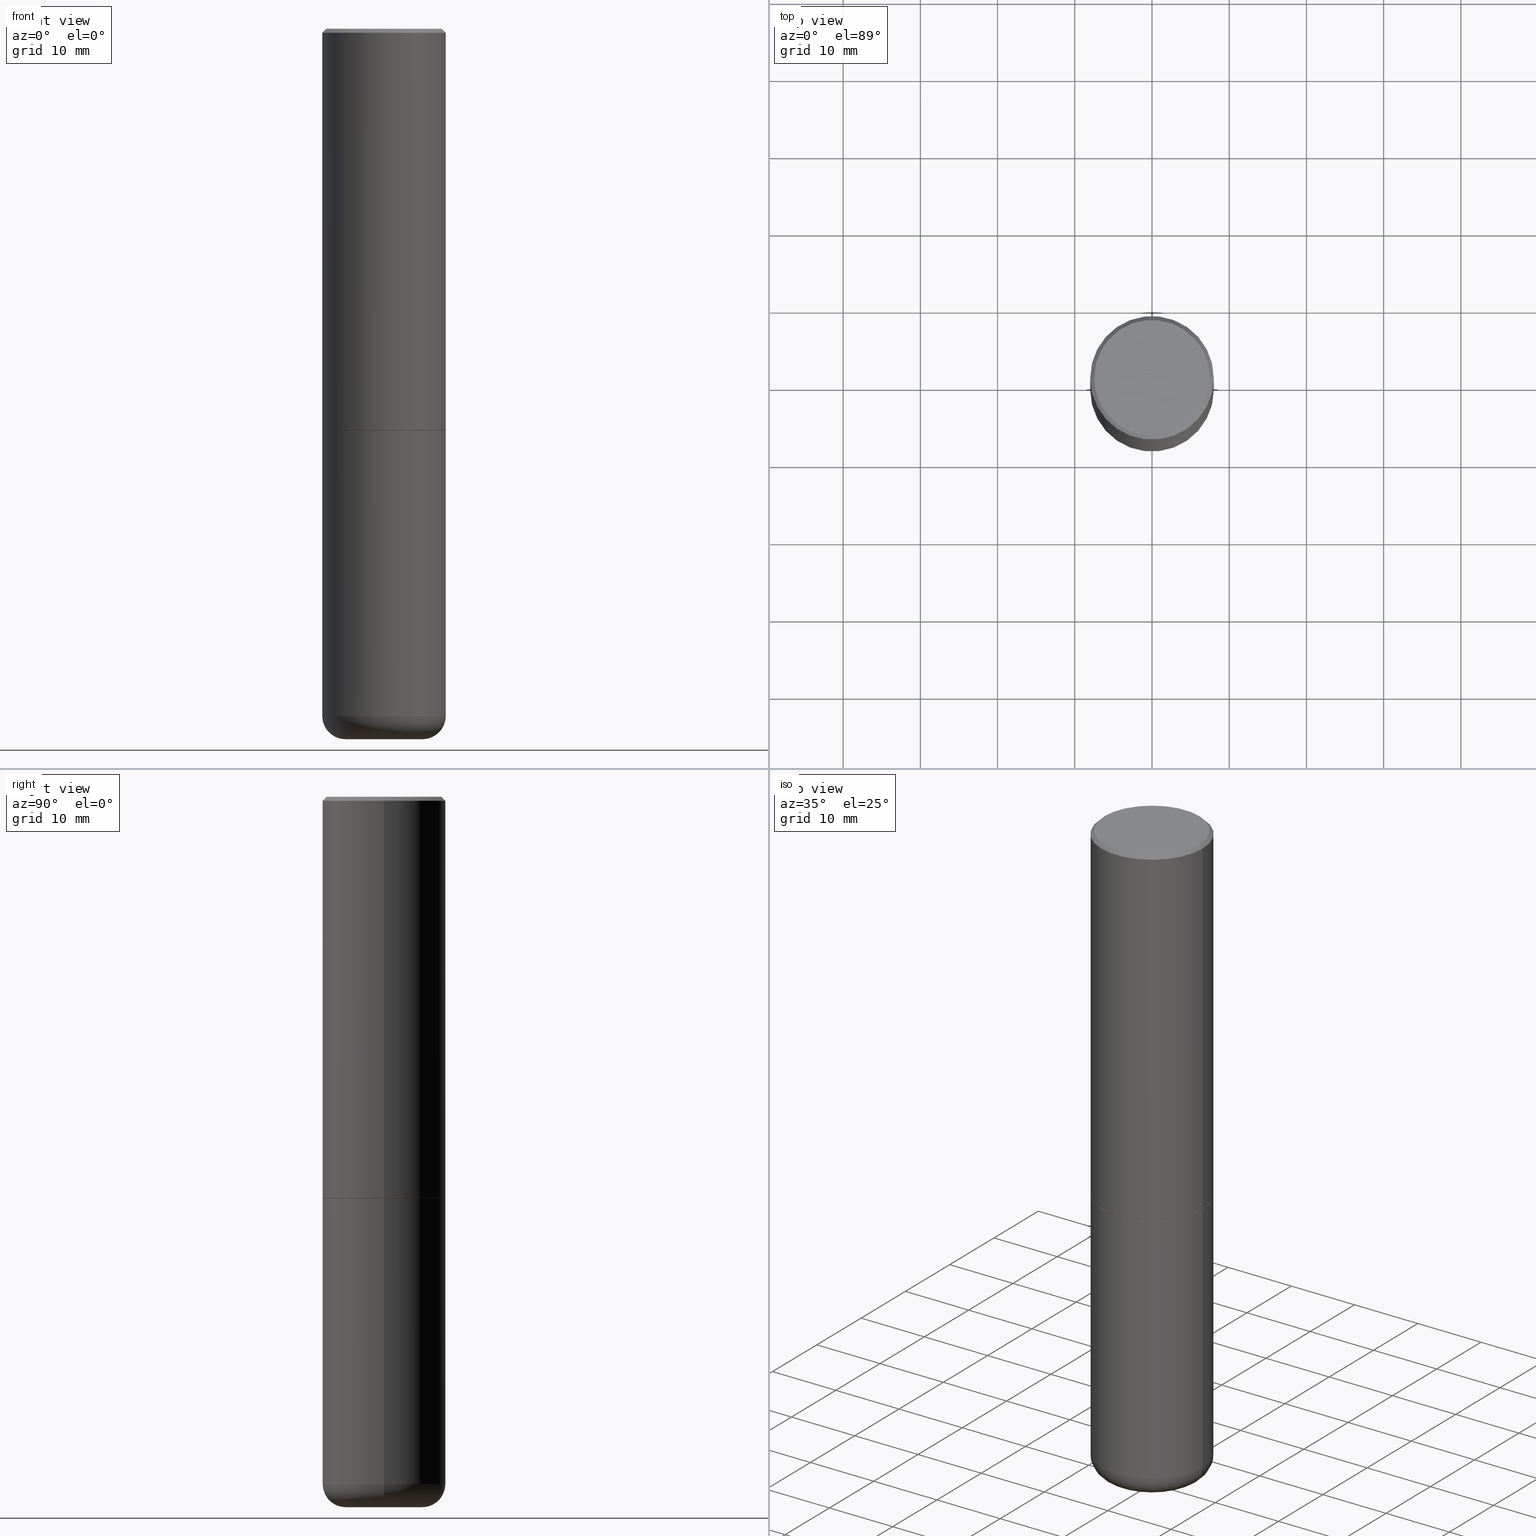
[diagram: canonical four-view strip — front | top / right | iso, engineering-drawing reading convention]
A machine part, canonical four-view strip (front | top / right | iso — engineering-drawing reading convention). The complete STEP part file that produces these views, byte-faithful:
ISO-10303-21;
HEADER;
FILE_DESCRIPTION (( 'STEP AP203' ),
    '1' );
FILE_NAME ('74751.STEP',
    '2024-05-02T19:16:25',
    ( '' ),
    ( '' ),
    'SwSTEP 2.0',
    'SolidWorks 2023',
    '' );
FILE_SCHEMA (( 'CONFIG_CONTROL_DESIGN' ));
ENDSEC;

DATA;
#1 = VERTEX_POINT ( 'NONE', #235 ) ;
#2 =( CONVERSION_BASED_UNIT ( 'INCH', #260 ) LENGTH_UNIT ( ) NAMED_UNIT ( #327 ) );
#3 = AXIS2_PLACEMENT_3D ( 'NONE', #376, #17, #238 ) ;
#4 = CC_DESIGN_APPROVAL ( #113, ( #161 ) ) ;
#5 = ORIENTED_EDGE ( 'NONE', *, *, #233, .T. ) ;
#6 = DATE_AND_TIME ( #155, #417 ) ;
#7 = ORIENTED_EDGE ( 'NONE', *, *, #315, .F. ) ;
#8 = AXIS2_PLACEMENT_3D ( 'NONE', #204, #108, #42 ) ;
#9 = AXIS2_PLACEMENT_3D ( 'NONE', #15, #107, #397 ) ;
#10 = DIRECTION ( 'NONE',  ( -2.438088387897960049E-29, 3.491481338843145188E-15, 1.000000000000000000 ) ) ;
#11 = ORIENTED_EDGE ( 'NONE', *, *, #256, .T. ) ;
#12 = FACE_OUTER_BOUND ( 'NONE', #156, .T. ) ;
#13 = EDGE_CURVE ( 'NONE', #392, #164, #109, .T. ) ;
#14 = VERTEX_POINT ( 'NONE', #285 ) ;
#15 = CARTESIAN_POINT ( 'NONE',  ( 8.568678149992099474E-29, -1.223380146317249786E-14, -3.503899999999999793 ) ) ;
#16 = CONICAL_SURFACE ( 'NONE', #88, 0.3149499999999999522, 0.7853981633974469467 ) ;
#17 = DIRECTION ( 'NONE',  ( -2.445468806185136597E-29, 3.491481338843145583E-15, 1.000000000000000000 ) ) ;
#18 = DIRECTION ( 'NONE',  ( 1.000000000000000000, -6.982962677686265922E-15, 4.876176775795935232E-29 ) ) ;
#19 = DIRECTION ( 'NONE',  ( -1.000000000000000000, 6.982962677686265922E-15, -4.876176775795935793E-29 ) ) ;
#20 = EDGE_CURVE ( 'NONE', #14, #392, #381, .T. ) ;
#21 = AXIS2_PLACEMENT_3D ( 'NONE', #200, #373, #343 ) ;
#22 = CARTESIAN_POINT ( 'NONE',  ( 5.006363740022209999E-29, -7.147760596879685046E-15, -2.047199999999999243 ) ) ;
#23 = LINE ( 'NONE', #142, #205 ) ;
#24 = ADVANCED_FACE ( 'NONE', ( #102 ), #118, .T. ) ;
#25 = LINE ( 'NONE', #27, #52 ) ;
#26 = ORGANIZATION ( 'UNSPECIFIED', 'UNSPECIFIED', '' ) ;
#27 = CARTESIAN_POINT ( 'NONE',  ( 0.3149500000000001743, -2.199284095337290660E-15, 1.535751875536930690E-29 ) ) ;
#28 = ORIENTED_EDGE ( 'NONE', *, *, #72, .T. ) ;
#29 = APPROVAL_STATUS ( 'not_yet_approved' ) ;
#30 = EDGE_CURVE ( 'NONE', #1, #365, #242, .T. ) ;
#31 = COORDINATED_UNIVERSAL_TIME_OFFSET ( 5, 0, .BEHIND. ) ;
#32 = ORIENTED_EDGE ( 'NONE', *, *, #391, .F. ) ;
#33 = EDGE_LOOP ( 'NONE', ( #330, #332, #32, #130 ) ) ;
#34 = CONICAL_SURFACE ( 'NONE', #190, 0.3139500000000000068, 0.7853981633976873100 ) ;
#35 = APPROVAL_DATE_TIME ( #328, #333 ) ;
#36 =( LENGTH_UNIT ( ) NAMED_UNIT ( * ) SI_UNIT ( $, .METRE. ) );
#37 = EDGE_CURVE ( 'NONE', #14, #123, #184, .T. ) ;
#38 = APPROVAL_STATUS ( 'not_yet_approved' ) ;
#39 = ORIENTED_EDGE ( 'NONE', *, *, #13, .T. ) ;
#40 = VECTOR ( 'NONE', #119, 39.37007874015748143 ) ;
#41 = PRODUCT_DEFINITION_FORMATION_WITH_SPECIFIED_SOURCE ( 'ANY', '', #64, .NOT_KNOWN. ) ;
#42 = DIRECTION ( 'NONE',  ( 1.000000000000000000, -6.982962677686263555E-15, 4.883557194083111780E-29 ) ) ;
#43 = DATE_TIME_ROLE ( 'classification_date' ) ;
#44 = ORIENTED_EDGE ( 'NONE', *, *, #391, .T. ) ;
#45 = FACE_OUTER_BOUND ( 'NONE', #300, .T. ) ;
#46 = DIRECTION ( 'NONE',  ( -2.445468806185136597E-29, 3.491481338843145583E-15, 1.000000000000000000 ) ) ;
#47 = AXIS2_PLACEMENT_3D ( 'NONE', #339, #337, #230 ) ;
#48 = AXIS2_PLACEMENT_3D ( 'NONE', #270, #407, #349 ) ;
#49 = CARTESIAN_POINT ( 'NONE',  ( 4.890937612370289799E-31, -6.982962677686315028E-17, -0.02000000000000006981 ) ) ;
#50 = CARTESIAN_POINT ( 'NONE',  ( -4.488561081641444621E-45, 6.408475632635922878E-31, 1.835460370743176819E-16 ) ) ;
#51 = DIRECTION ( 'NONE',  ( 1.000000000000000000, -6.982962677686265922E-15, 4.876176775795935232E-29 ) ) ;
#52 = VECTOR ( 'NONE', #146, 39.37007874015748143 ) ;
#53 = FACE_OUTER_BOUND ( 'NONE', #69, .T. ) ;
#54 = CARTESIAN_POINT ( 'NONE',  ( 0.3149499999999999522, -2.230543471175006661E-15, -0.02000000000000006981 ) ) ;
#55 = CARTESIAN_POINT ( 'NONE',  ( 5.006363740022209999E-29, -7.147760596879685046E-15, -2.047199999999999243 ) ) ;
#56 = EDGE_LOOP ( 'NONE', ( #360, #197, #44, #125 ) ) ;
#57 = AXIS2_PLACEMENT_3D ( 'NONE', #404, #264, #73 ) ;
#58 = CIRCLE ( 'NONE', #313, 0.1968500000000000250 ) ;
#59 = AXIS2_PLACEMENT_3D ( 'NONE', #165, #370, #111 ) ;
#60 = VERTEX_POINT ( 'NONE', #283 ) ;
#61 = PERSON_AND_ORGANIZATION ( #136, #26 ) ;
#62 = ORIENTED_EDGE ( 'NONE', *, *, #121, .T. ) ;
#63 = APPLICATION_PROTOCOL_DEFINITION ( 'international standard', 'config_control_design', 1994, #399 ) ;
#64 = PRODUCT ( '74751', '74751', '', ( #286 ) ) ;
#65 = DIRECTION ( 'NONE',  ( 1.000000000000000000, -6.982962677686263555E-15, 0.000000000000000000 ) ) ;
#66 = AXIS2_PLACEMENT_3D ( 'NONE', #55, #181, #323 ) ;
#67 = ADVANCED_FACE ( 'NONE', ( #143 ), #406, .T. ) ;
#68 = PERSON_AND_ORGANIZATION ( #136, #26 ) ;
#69 = EDGE_LOOP ( 'NONE', ( #28, #91, #402, #166 ) ) ;
#70 = ORIENTED_EDGE ( 'NONE', *, *, #272, .F. ) ;
#71 = ORIENTED_EDGE ( 'NONE', *, *, #20, .F. ) ;
#72 = EDGE_CURVE ( 'NONE', #1, #263, #362, .T. ) ;
#73 = DIRECTION ( 'NONE',  ( -1.000000000000000000, 6.982962677686265922E-15, -4.876176775795935793E-29 ) ) ;
#74 = TOROIDAL_SURFACE ( 'NONE', #9, 0.1968500000000000250, 0.1181000000000000105 ) ;
#75 = ORIENTED_EDGE ( 'NONE', *, *, #37, .T. ) ;
#76 = ORIENTED_EDGE ( 'NONE', *, *, #396, .T. ) ;
#77 = LINE ( 'NONE', #234, #298 ) ;
#78 = DIRECTION ( 'NONE',  ( 1.000000000000000000, -6.982962677686265922E-15, 4.876176775795935793E-29 ) ) ;
#79 = DIRECTION ( 'NONE',  ( 1.000000000000000000, -6.982962677686266711E-15, 0.000000000000000000 ) ) ;
#80 = VECTOR ( 'NONE', #231, 39.37007874015748143 ) ;
#81 = CIRCLE ( 'NONE', #336, 0.3149499999999999522 ) ;
#82 = ADVANCED_FACE ( 'NONE', ( #12 ), #281, .T. ) ;
#83 = CARTESIAN_POINT ( 'NONE',  ( -0.3149500000000000077, -7.452926683749657046E-15, -2.047199999999999687 ) ) ;
#84 = DIRECTION ( 'NONE',  ( -2.445468806185136597E-29, 3.491481338843145583E-15, 1.000000000000000000 ) ) ;
#85 = DIRECTION ( 'NONE',  ( -2.445468806185136597E-29, 3.491481338843145583E-15, 1.000000000000000000 ) ) ;
#86 = DIRECTION ( 'NONE',  ( -2.445468806185136597E-29, 3.491481338843145583E-15, 1.000000000000000000 ) ) ;
#87 = ADVANCED_FACE ( 'NONE', ( #169 ), #301, .F. ) ;
#88 = AXIS2_PLACEMENT_3D ( 'NONE', #244, #276, #208 ) ;
#89 = FACE_OUTER_BOUND ( 'NONE', #229, .T. ) ;
#90 = DIRECTION ( 'NONE',  ( -2.445468806185136597E-29, 3.491481338843145583E-15, 1.000000000000000000 ) ) ;
#91 = ORIENTED_EDGE ( 'NONE', *, *, #377, .T. ) ;
#92 = ORIENTED_EDGE ( 'NONE', *, *, #358, .T. ) ;
#93 = VECTOR ( 'NONE', #247, 39.37007874015748143 ) ;
#94 = CC_DESIGN_PERSON_AND_ORGANIZATION_ASSIGNMENT ( #61, #187, ( #64 ) ) ;
#95 = DATE_AND_TIME ( #356, #375 ) ;
#96 = PERSON_AND_ORGANIZATION ( #136, #26 ) ;
#97 = APPROVAL_STATUS ( 'not_yet_approved' ) ;
#98 = VERTEX_POINT ( 'NONE', #110 ) ;
#99 = AXIS2_PLACEMENT_3D ( 'NONE', #292, #387, #149 ) ;
#100 = LOCAL_TIME ( 15, 16, 25.00000000000000000, #366 ) ;
#101 = ORIENTED_EDGE ( 'NONE', *, *, #30, .T. ) ;
#102 = FACE_OUTER_BOUND ( 'NONE', #56, .T. ) ;
#103 = VERTEX_POINT ( 'NONE', #134 ) ;
#104 = CC_DESIGN_DATE_AND_TIME_ASSIGNMENT ( #95, #288, ( #367 ) ) ;
#105 = DIRECTION ( 'NONE',  ( 1.000000000000000000, -6.982962677686267499E-15, 0.000000000000000000 ) ) ;
#106 = ORIENTED_EDGE ( 'NONE', *, *, #170, .F. ) ;
#107 = DIRECTION ( 'NONE',  ( -2.445468806185136597E-29, 3.491481338843145583E-15, 1.000000000000000000 ) ) ;
#108 = DIRECTION ( 'NONE',  ( -2.445468806185136597E-29, 3.491481338843145583E-15, 1.000000000000000000 ) ) ;
#109 = LINE ( 'NONE', #116, #80 ) ;
#110 = CARTESIAN_POINT ( 'NONE',  ( -0.3149500000000002853, -1.369195024882414317E-15, -2.046199999999999797 ) ) ;
#111 = DIRECTION ( 'NONE',  ( 1.000000000000000000, -6.982962677686269866E-15, 0.000000000000000000 ) ) ;
#112 = AXIS2_PLACEMENT_3D ( 'NONE', #115, #383, #409 ) ;
#113 = APPROVAL ( #38, 'UNSPECIFIED' ) ;
#114 = DIRECTION ( 'NONE',  ( 2.438088387897960049E-29, -3.491481338843145188E-15, -1.000000000000000000 ) ) ;
#115 = CARTESIAN_POINT ( 'NONE',  ( 8.726305720484796028E-29, -1.820591954908441559E-15, -2.047200000000000131 ) ) ;
#116 = CARTESIAN_POINT ( 'NONE',  ( -0.3149500000000000077, 2.237854346276435590E-15, -1.549218606675782676E-29 ) ) ;
#117 = CYLINDRICAL_SURFACE ( 'NONE', #282, 0.3149500000000001743 ) ;
#118 = CONICAL_SURFACE ( 'NONE', #341, 0.3149499999999999522, 0.7853981633974469467 ) ;
#119 = DIRECTION ( 'NONE',  ( -0.7071067811865465735, 2.468850131082246805E-15, -0.7071067811865484609 ) ) ;
#120 = CARTESIAN_POINT ( 'NONE',  ( 0.3149500000000002853, -9.343553210878135066E-15, -2.046199999999999797 ) ) ;
#121 = EDGE_CURVE ( 'NONE', #137, #355, #77, .T. ) ;
#122 = CALENDAR_DATE ( 2024, 2, 5 ) ;
#123 = VERTEX_POINT ( 'NONE', #236 ) ;
#124 = COORDINATED_UNIVERSAL_TIME_OFFSET ( 5, 0, .BEHIND. ) ;
#125 = ORIENTED_EDGE ( 'NONE', *, *, #372, .F. ) ;
#126 = APPROVAL_DATE_TIME ( #6, #141 ) ;
#127 = ORIENTED_EDGE ( 'NONE', *, *, #13, .F. ) ;
#128 = DIRECTION ( 'NONE',  ( 7.105427357601001859E-15, 1.000000000000000000, -3.491481338843145583E-15 ) ) ;
#129 = CC_DESIGN_APPROVAL ( #333, ( #367 ) ) ;
#130 = ORIENTED_EDGE ( 'NONE', *, *, #256, .F. ) ;
#131 = DIRECTION ( 'NONE',  ( -2.445468806185136597E-29, 3.491481338843145583E-15, 1.000000000000000000 ) ) ;
#132 = ORIENTED_EDGE ( 'NONE', *, *, #219, .F. ) ;
#133 = FACE_OUTER_BOUND ( 'NONE', #201, .T. ) ;
#134 = CARTESIAN_POINT ( 'NONE',  ( 0.2949499999999997679, -2.127023677808858891E-15, 1.835460370743323251E-16 ) ) ;
#135 = CIRCLE ( 'NONE', #176, 0.3149500000000002853 ) ;
#136 = PERSON ( 'UNSPECIFIED', 'UNSPECIFIED', 'UNSPECIFIED', ('UNSPECIFIED'), ('UNSPECIFIED'), ('UNSPECIFIED') ) ;
#137 = VERTEX_POINT ( 'NONE', #334 ) ;
#138 = DIRECTION ( 'NONE',  ( -2.445468806185136597E-29, 3.491481338843145583E-15, 1.000000000000000000 ) ) ;
#139 = CYLINDRICAL_SURFACE ( 'NONE', #48, 0.3149500000000000077 ) ;
#140 = FACE_OUTER_BOUND ( 'NONE', #220, .T. ) ;
#141 = APPROVAL ( #97, 'UNSPECIFIED' ) ;
#142 = CARTESIAN_POINT ( 'NONE',  ( 0.3149499999999999522, -2.230543471175006661E-15, -0.02000000000000006981 ) ) ;
#143 = FACE_OUTER_BOUND ( 'NONE', #182, .T. ) ;
#144 = FACE_OUTER_BOUND ( 'NONE', #150, .T. ) ;
#145 = DIRECTION ( 'NONE',  ( 1.000000000000000000, -6.982962677686273021E-15, 0.000000000000000000 ) ) ;
#146 = DIRECTION ( 'NONE',  ( -2.445468806185136877E-29, 3.491481338843145188E-15, 1.000000000000000000 ) ) ;
#147 = PERSON_AND_ORGANIZATION_ROLE ( 'creator' ) ;
#148 = ORIENTED_EDGE ( 'NONE', *, *, #151, .T. ) ;
#149 = DIRECTION ( 'NONE',  ( 1.000000000000000000, 0.000000000000000000, 0.000000000000000000 ) ) ;
#150 = EDGE_LOOP ( 'NONE', ( #92, #148 ) ) ;
#151 = EDGE_CURVE ( 'NONE', #164, #355, #369, .T. ) ;
#152 = CIRCLE ( 'NONE', #196, 0.3149500000000002853 ) ;
#153 = CC_DESIGN_APPROVAL ( #141, ( #41 ) ) ;
#154 =( NAMED_UNIT ( * ) SI_UNIT ( $, .STERADIAN. ) SOLID_ANGLE_UNIT ( ) );
#155 = CALENDAR_DATE ( 2024, 2, 5 ) ;
#156 = EDGE_LOOP ( 'NONE', ( #266, #192, #215, #7 ) ) ;
#157 = EDGE_LOOP ( 'NONE', ( #127, #189, #62, #405 ) ) ;
#158 = CARTESIAN_POINT ( 'NONE',  ( -0.1968500000000000250, -1.083509808782873928E-14, -3.503899999999999793 ) ) ;
#159 = PERSON_AND_ORGANIZATION ( #136, #26 ) ;
#160 = AXIS2_PLACEMENT_3D ( 'NONE', #175, #114, #19 ) ;
#161 = SECURITY_CLASSIFICATION ( '', '', #352 ) ;
#162 = CARTESIAN_POINT ( 'NONE',  ( 5.003918271216025517E-29, -7.144269115540843617E-15, -2.046199999999999797 ) ) ;
#163 = ADVANCED_FACE ( 'NONE', ( #133 ), #311, .T. ) ;
#164 = VERTEX_POINT ( 'NONE', #83 ) ;
#165 = CARTESIAN_POINT ( 'NONE',  ( 5.006363740022211120E-29, -7.147760596879686624E-15, -2.047199999999999687 ) ) ;
#166 = ORIENTED_EDGE ( 'NONE', *, *, #30, .F. ) ;
#167 = APPROVAL_ROLE ( '' ) ;
#168 = ORIENTED_EDGE ( 'NONE', *, *, #377, .F. ) ;
#169 = FACE_OUTER_BOUND ( 'NONE', #257, .T. ) ;
#170 = EDGE_CURVE ( 'NONE', #98, #228, #198, .T. ) ;
#171 = CARTESIAN_POINT ( 'NONE',  ( 0.000000000000000000, 0.000000000000000000, 0.000000000000000000 ) ) ;
#172 = APPROVAL_PERSON_ORGANIZATION ( #96, #141, #222 ) ;
#173 = FACE_OUTER_BOUND ( 'NONE', #157, .T. ) ;
#174 = DIRECTION ( 'NONE',  ( 1.000000000000000000, -6.982962677686264344E-15, 0.000000000000000000 ) ) ;
#175 = CARTESIAN_POINT ( 'NONE',  ( 8.857488016002564476E-29, -1.264614540928987199E-14, -3.621999999999999886 ) ) ;
#176 = AXIS2_PLACEMENT_3D ( 'NONE', #162, #131, #105 ) ;
#177 = CARTESIAN_POINT ( 'NONE',  ( 8.568678149992099474E-29, -1.223380146317249786E-14, -3.503899999999999793 ) ) ;
#178 = DIRECTION ( 'NONE',  ( -6.982962677686266711E-15, -1.000000000000000000, 3.491481338843145583E-15 ) ) ;
#179 = ORIENTED_EDGE ( 'NONE', *, *, #372, .T. ) ;
#180 = ADVANCED_FACE ( 'NONE', ( #45 ), #265, .F. ) ;
#181 = DIRECTION ( 'NONE',  ( -2.445468806185136597E-29, 3.491481338843145583E-15, 1.000000000000000000 ) ) ;
#182 = EDGE_LOOP ( 'NONE', ( #106, #329, #11, #295 ) ) ;
#183 = AXIS2_PLACEMENT_3D ( 'NONE', #158, #128, #338 ) ;
#184 = CIRCLE ( 'NONE', #374, 0.1968500000000000250 ) ;
#185 = AXIS2_PLACEMENT_3D ( 'NONE', #312, #416, #411 ) ;
#186 = PERSON_AND_ORGANIZATION ( #136, #26 ) ;
#187 = PERSON_AND_ORGANIZATION_ROLE ( 'design_owner' ) ;
#188 = ORIENTED_EDGE ( 'NONE', *, *, #72, .F. ) ;
#189 = ORIENTED_EDGE ( 'NONE', *, *, #272, .T. ) ;
#190 = AXIS2_PLACEMENT_3D ( 'NONE', #22, #85, #174 ) ;
#191 = APPLICATION_PROTOCOL_DEFINITION ( 'international standard', 'config_control_design', 1994, #380 ) ;
#192 = ORIENTED_EDGE ( 'NONE', *, *, #20, .T. ) ;
#193 = PERSON_AND_ORGANIZATION_ROLE ( 'design_supplier' ) ;
#194 = ORIENTED_EDGE ( 'NONE', *, *, #37, .F. ) ;
#195 = APPROVAL_DATE_TIME ( #262, #113 ) ;
#196 = AXIS2_PLACEMENT_3D ( 'NONE', #243, #314, #318 ) ;
#197 = ORIENTED_EDGE ( 'NONE', *, *, #342, .T. ) ;
#198 = LINE ( 'NONE', #303, #325 ) ;
#199 = ORIENTED_EDGE ( 'NONE', *, *, #212, .F. ) ;
#200 = CARTESIAN_POINT ( 'NONE',  ( -4.488561081641444621E-45, 6.408475632635922878E-31, 1.835460370743176819E-16 ) ) ;
#201 = EDGE_LOOP ( 'NONE', ( #324, #39, #393, #248 ) ) ;
#202 = ADVANCED_FACE ( 'NONE', ( #368 ), #74, .T. ) ;
#203 = CARTESIAN_POINT ( 'NONE',  ( 5.006363740022209999E-29, -7.147760596879685046E-15, -2.047199999999999243 ) ) ;
#204 = CARTESIAN_POINT ( 'NONE',  ( 8.568678149992099474E-29, -1.223380146317249786E-14, -3.503899999999999793 ) ) ;
#205 = VECTOR ( 'NONE', #413, 39.37007874015748143 ) ;
#206 = DIRECTION ( 'NONE',  ( 1.000000000000000000, -6.982962677686267499E-15, 0.000000000000000000 ) ) ;
#207 = CARTESIAN_POINT ( 'NONE',  ( -0.3139500000000000068, -4.911713223612628457E-15, -2.047199999999999243 ) ) ;
#208 = DIRECTION ( 'NONE',  ( -1.000000000000000000, 6.982962677686266711E-15, 0.000000000000000000 ) ) ;
#209 = CARTESIAN_POINT ( 'NONE',  ( -0.3149499999999999522, 2.129454468560426178E-15, -0.02000000000000006981 ) ) ;
#210 = CLOSED_SHELL ( 'NONE', ( #163, #82, #245, #240, #202, #293 ) ) ;
#211 = CARTESIAN_POINT ( 'NONE',  ( 0.3149500000000000077, -9.347044692216978073E-15, -2.047199999999999687 ) ) ;
#212 = EDGE_CURVE ( 'NONE', #60, #103, #216, .T. ) ;
#213 = DIRECTION ( 'NONE',  ( 1.000000000000000000, -6.982962677686266711E-15, 0.000000000000000000 ) ) ;
#214 = APPROVAL_ROLE ( '' ) ;
#215 = ORIENTED_EDGE ( 'NONE', *, *, #403, .F. ) ;
#216 = CIRCLE ( 'NONE', #21, 0.2949499999999997679 ) ;
#217 = APPROVAL_PERSON_ORGANIZATION ( #395, #113, #167 ) ;
#218 = CARTESIAN_POINT ( 'NONE',  ( 8.568678149992099474E-29, -1.223380146317249786E-14, -3.503899999999999793 ) ) ;
#219 = EDGE_CURVE ( 'NONE', #98, #365, #135, .T. ) ;
#220 = EDGE_LOOP ( 'NONE', ( #335, #194 ) ) ;
#221 = CARTESIAN_POINT ( 'NONE',  ( 0.3139500000000000068, -9.340061729539288903E-15, -2.047199999999999243 ) ) ;
#222 = APPROVAL_ROLE ( '' ) ;
#223 = CC_DESIGN_PERSON_AND_ORGANIZATION_ASSIGNMENT ( #68, #193, ( #41 ) ) ;
#224 = PERSON_AND_ORGANIZATION ( #136, #26 ) ;
#225 = AXIS2_PLACEMENT_3D ( 'NONE', #171, #309, #18 ) ;
#226 = COORDINATED_UNIVERSAL_TIME_OFFSET ( 5, 0, .BEHIND. ) ;
#227 = ADVANCED_FACE ( 'NONE', ( #268 ), #353, .T. ) ;
#228 = VERTEX_POINT ( 'NONE', #269 ) ;
#229 = EDGE_LOOP ( 'NONE', ( #252, #199, #179, #5 ) ) ;
#230 = DIRECTION ( 'NONE',  ( 1.000000000000000000, -6.982962677686264344E-15, 0.000000000000000000 ) ) ;
#231 = DIRECTION ( 'NONE',  ( -2.445468806185136877E-29, 3.491481338843145188E-15, 1.000000000000000000 ) ) ;
#232 = AXIS2_PLACEMENT_3D ( 'NONE', #398, #10, #78 ) ;
#233 = EDGE_CURVE ( 'NONE', #228, #294, #389, .T. ) ;
#234 = CARTESIAN_POINT ( 'NONE',  ( 0.3149500000000000077, -2.199284095337289871E-15, 1.535751875536930130E-29 ) ) ;
#235 = CARTESIAN_POINT ( 'NONE',  ( 0.3139500000000000068, -9.340061729539288903E-15, -2.047199999999999243 ) ) ;
#236 = CARTESIAN_POINT ( 'NONE',  ( 0.1968500000000000250, -1.402074161239241360E-14, -3.621999999999999886 ) ) ;
#237 = AXIS2_PLACEMENT_3D ( 'NONE', #177, #86, #346 ) ;
#238 = DIRECTION ( 'NONE',  ( 1.000000000000000000, -6.982962677686266711E-15, 4.876176775795936353E-29 ) ) ;
#239 = CIRCLE ( 'NONE', #66, 0.3139500000000000068 ) ;
#240 = ADVANCED_FACE ( 'NONE', ( #173 ), #139, .T. ) ;
#241 = CARTESIAN_POINT ( 'NONE',  ( 8.857488016002564476E-29, -1.264614540928987199E-14, -3.621999999999999886 ) ) ;
#242 = LINE ( 'NONE', #221, #414 ) ;
#243 = CARTESIAN_POINT ( 'NONE',  ( 5.003918271216025517E-29, -7.144269115540843617E-15, -2.046199999999999797 ) ) ;
#244 = CARTESIAN_POINT ( 'NONE',  ( 4.890937612370289799E-31, -6.982962677686315028E-17, -0.02000000000000006981 ) ) ;
#245 = ADVANCED_FACE ( 'NONE', ( #144 ), #319, .F. ) ;
#246 = CIRCLE ( 'NONE', #185, 0.3149500000000000077 ) ;
#247 = DIRECTION ( 'NONE',  ( -0.7071067811867165487, 7.493145998870964739E-15, 0.7071067811863784858 ) ) ;
#248 = ORIENTED_EDGE ( 'NONE', *, *, #121, .F. ) ;
#249 = DIRECTION ( 'NONE',  ( -2.445468806185136597E-29, 3.491481338843145583E-15, 1.000000000000000000 ) ) ;
#250 = ADVANCED_FACE ( 'NONE', ( #386 ), #117, .T. ) ;
#251 = DATE_AND_TIME ( #122, #259 ) ;
#252 = ORIENTED_EDGE ( 'NONE', *, *, #342, .F. ) ;
#253 = CIRCLE ( 'NONE', #289, 0.2949499999999997679 ) ;
#254 = CALENDAR_DATE ( 2024, 2, 5 ) ;
#255 = EDGE_LOOP ( 'NONE', ( #168, #76, #101, #132 ) ) ;
#256 = EDGE_CURVE ( 'NONE', #365, #294, #25, .T. ) ;
#257 = EDGE_LOOP ( 'NONE', ( #385, #287 ) ) ;
#258 = APPROVAL_PERSON_ORGANIZATION ( #224, #333, #214 ) ;
#259 = LOCAL_TIME ( 15, 16, 25.00000000000000000, #321 ) ;
#260 = LENGTH_MEASURE_WITH_UNIT ( LENGTH_MEASURE( 0.02539999999999999897 ), #36 );
#261 = EDGE_LOOP ( 'NONE', ( #71, #75, #308, #70 ) ) ;
#262 = DATE_AND_TIME ( #299, #100 ) ;
#263 = VERTEX_POINT ( 'NONE', #207 ) ;
#264 = DIRECTION ( 'NONE',  ( 2.438088387897960049E-29, -3.491481338843145188E-15, -1.000000000000000000 ) ) ;
#265 = PLANE ( 'NONE',  #232 ) ;
#266 = ORIENTED_EDGE ( 'NONE', *, *, #322, .T. ) ;
#267 = CLOSED_SHELL ( 'NONE', ( #326, #250, #24, #351, #67, #227, #180, #87 ) ) ;
#268 = FACE_OUTER_BOUND ( 'NONE', #255, .T. ) ;
#269 = CARTESIAN_POINT ( 'NONE',  ( -0.3149499999999999522, 2.129454468560426178E-15, -0.02000000000000006981 ) ) ;
#270 = CARTESIAN_POINT ( 'NONE',  ( 0.000000000000000000, 0.000000000000000000, 0.000000000000000000 ) ) ;
#271 = DIRECTION ( 'NONE',  ( 2.445468806185136597E-29, -3.491481338843145583E-15, -1.000000000000000000 ) ) ;
#272 = EDGE_CURVE ( 'NONE', #392, #137, #363, .T. ) ;
#273 = CARTESIAN_POINT ( 'NONE',  ( 8.857488016002564476E-29, -1.264614540928987199E-14, -3.621999999999999886 ) ) ;
#274 = AXIS2_PLACEMENT_3D ( 'NONE', #49, #46, #79 ) ;
#275 = DIRECTION ( 'NONE',  ( -2.445468806185136597E-29, 3.491481338843145583E-15, 1.000000000000000000 ) ) ;
#276 = DIRECTION ( 'NONE',  ( 2.445468806185136597E-29, -3.491481338843145583E-15, -1.000000000000000000 ) ) ;
#277 = EDGE_CURVE ( 'NONE', #103, #60, #253, .T. ) ;
#278 = CARTESIAN_POINT ( 'NONE',  ( 4.890937612370289799E-31, -6.982962677686315028E-17, -0.02000000000000006981 ) ) ;
#279 = PLANE ( 'NONE',  #160 ) ;
#280 = CARTESIAN_POINT ( 'NONE',  ( 0.1968500000000000250, -1.360839766627503947E-14, -3.503899999999999793 ) ) ;
#281 = TOROIDAL_SURFACE ( 'NONE', #8, 0.1968500000000000250, 0.1181000000000000105 ) ;
#282 = AXIS2_PLACEMENT_3D ( 'NONE', #347, #275, #51 ) ;
#283 = CARTESIAN_POINT ( 'NONE',  ( -0.2949499999999997679, 2.094539655171994924E-15, 1.835460370743031619E-16 ) ) ;
#284 = CARTESIAN_POINT ( 'NONE',  ( -0.3139500000000000068, -4.917011677960851648E-15, -2.047199999999999243 ) ) ;
#285 = CARTESIAN_POINT ( 'NONE',  ( -0.1968500000000000250, -1.062169457542108922E-14, -3.621999999999999886 ) ) ;
#286 = MECHANICAL_CONTEXT ( 'NONE', #380, 'mechanical' ) ;
#287 = ORIENTED_EDGE ( 'NONE', *, *, #277, .T. ) ;
#288 = DATE_TIME_ROLE ( 'creation_date' ) ;
#289 = AXIS2_PLACEMENT_3D ( 'NONE', #50, #249, #316 ) ;
#290 = DESIGN_CONTEXT ( 'detailed design', #399, 'design' ) ;
#291 = MANIFOLD_SOLID_BREP ( 'Body-Move/Copy2[1]', #210 ) ;
#292 = CARTESIAN_POINT ( 'NONE',  ( 0.000000000000000000, 0.000000000000000000, 0.000000000000000000 ) ) ;
#293 = ADVANCED_FACE ( 'NONE', ( #140 ), #279, .T. ) ;
#294 = VERTEX_POINT ( 'NONE', #54 ) ;
#295 = ORIENTED_EDGE ( 'NONE', *, *, #233, .F. ) ;
#296 = MANIFOLD_SOLID_BREP ( 'Body-Move/Copy2[2]', #267 ) ;
#297 = CC_DESIGN_PERSON_AND_ORGANIZATION_ASSIGNMENT ( #186, #331, ( #161 ) ) ;
#298 = VECTOR ( 'NONE', #371, 39.37007874015748143 ) ;
#299 = CALENDAR_DATE ( 2024, 2, 5 ) ;
#300 = EDGE_LOOP ( 'NONE', ( #188, #388 ) ) ;
#301 = PLANE ( 'NONE',  #57 ) ;
#302 = CC_DESIGN_PERSON_AND_ORGANIZATION_ASSIGNMENT ( #159, #390, ( #367 ) ) ;
#303 = CARTESIAN_POINT ( 'NONE',  ( -0.3149500000000001743, 2.237854346276436774E-15, -1.549218606675783237E-29 ) ) ;
#304 = CC_DESIGN_PERSON_AND_ORGANIZATION_ASSIGNMENT ( #364, #147, ( #41 ) ) ;
#305 = SHAPE_DEFINITION_REPRESENTATION ( #361, #317 ) ;
#306 = DIRECTION ( 'NONE',  ( -2.445468806185136877E-29, 3.491481338843145188E-15, 1.000000000000000000 ) ) ;
#307 = CIRCLE ( 'NONE', #394, 0.3149500000000000077 ) ;
#308 = ORIENTED_EDGE ( 'NONE', *, *, #315, .T. ) ;
#309 = DIRECTION ( 'NONE',  ( -2.445468806185136597E-29, 3.491481338843145583E-15, 1.000000000000000000 ) ) ;
#310 = EDGE_CURVE ( 'NONE', #365, #98, #152, .T. ) ;
#311 = CYLINDRICAL_SURFACE ( 'NONE', #3, 0.3149500000000000077 ) ;
#312 = CARTESIAN_POINT ( 'NONE',  ( 5.006363740022211120E-29, -7.147760596879686624E-15, -2.047199999999999687 ) ) ;
#313 = AXIS2_PLACEMENT_3D ( 'NONE', #241, #418, #378 ) ;
#314 = DIRECTION ( 'NONE',  ( -2.445468806185136597E-29, 3.491481338843145583E-15, 1.000000000000000000 ) ) ;
#315 = EDGE_CURVE ( 'NONE', #123, #137, #408, .T. ) ;
#316 = DIRECTION ( 'NONE',  ( 1.000000000000000000, -6.982962677686265922E-15, 4.874125435057325556E-29 ) ) ;
#317 = ADVANCED_BREP_SHAPE_REPRESENTATION ( '74751', ( #291, #296, #99 ), #415 ) ;
#318 = DIRECTION ( 'NONE',  ( 1.000000000000000000, -6.982962677686267499E-15, 0.000000000000000000 ) ) ;
#319 = PLANE ( 'NONE',  #112 ) ;
#320 = LOCAL_TIME ( 15, 16, 25.00000000000000000, #31 ) ;
#321 = COORDINATED_UNIVERSAL_TIME_OFFSET ( 5, 0, .BEHIND. ) ;
#322 = EDGE_CURVE ( 'NONE', #123, #14, #58, .T. ) ;
#323 = DIRECTION ( 'NONE',  ( 1.000000000000000000, -6.982962677686264344E-15, 0.000000000000000000 ) ) ;
#324 = ORIENTED_EDGE ( 'NONE', *, *, #403, .T. ) ;
#325 = VECTOR ( 'NONE', #306, 39.37007874015748143 ) ;
#326 = ADVANCED_FACE ( 'NONE', ( #53 ), #34, .T. ) ;
#327 = DIMENSIONAL_EXPONENTS ( 1.000000000000000000, 0.000000000000000000, 0.000000000000000000, 0.000000000000000000, 0.000000000000000000, 0.000000000000000000, 0.000000000000000000 ) ;
#328 = DATE_AND_TIME ( #254, #320 ) ;
#329 = ORIENTED_EDGE ( 'NONE', *, *, #219, .T. ) ;
#330 = ORIENTED_EDGE ( 'NONE', *, *, #310, .T. ) ;
#331 = PERSON_AND_ORGANIZATION_ROLE ( 'classification_officer' ) ;
#332 = ORIENTED_EDGE ( 'NONE', *, *, #170, .T. ) ;
#333 = APPROVAL ( #29, 'UNSPECIFIED' ) ;
#334 = CARTESIAN_POINT ( 'NONE',  ( 0.3149500000000000077, -1.443308555850978615E-14, -3.503899999999999793 ) ) ;
#335 = ORIENTED_EDGE ( 'NONE', *, *, #322, .F. ) ;
#336 = AXIS2_PLACEMENT_3D ( 'NONE', #384, #90, #213 ) ;
#337 = DIRECTION ( 'NONE',  ( -2.445468806185136597E-29, 3.491481338843145583E-15, 1.000000000000000000 ) ) ;
#338 = DIRECTION ( 'NONE',  ( -1.000000000000000000, 7.105427357601005014E-15, 0.000000000000000000 ) ) ;
#339 = CARTESIAN_POINT ( 'NONE',  ( 5.006363740022209999E-29, -7.147760596879685046E-15, -2.047199999999999243 ) ) ;
#340 = DIRECTION ( 'NONE',  ( 1.000000000000000000, -6.982962677686264344E-15, 0.000000000000000000 ) ) ;
#341 = AXIS2_PLACEMENT_3D ( 'NONE', #278, #271, #344 ) ;
#342 = EDGE_CURVE ( 'NONE', #103, #294, #23, .T. ) ;
#343 = DIRECTION ( 'NONE',  ( 1.000000000000000000, -6.982962677686265922E-15, 4.874125435057325556E-29 ) ) ;
#344 = DIRECTION ( 'NONE',  ( -1.000000000000000000, 6.982962677686266711E-15, 0.000000000000000000 ) ) ;
#345 = PRODUCT_RELATED_PRODUCT_CATEGORY ( 'detail', '', ( #64 ) ) ;
#346 = DIRECTION ( 'NONE',  ( 1.000000000000000000, -6.982962677686263555E-15, 0.000000000000000000 ) ) ;
#347 = CARTESIAN_POINT ( 'NONE',  ( 0.000000000000000000, 0.000000000000000000, 0.000000000000000000 ) ) ;
#348 = LINE ( 'NONE', #284, #93 ) ;
#349 = DIRECTION ( 'NONE',  ( 1.000000000000000000, -6.982962677686266711E-15, 4.876176775795936353E-29 ) ) ;
#350 = CARTESIAN_POINT ( 'NONE',  ( -0.3149500000000000077, -9.995947116896063452E-15, -3.503899999999999793 ) ) ;
#351 = ADVANCED_FACE ( 'NONE', ( #89 ), #16, .T. ) ;
#352 = SECURITY_CLASSIFICATION_LEVEL ( 'unclassified' ) ;
#353 = CONICAL_SURFACE ( 'NONE', #382, 0.3139500000000000068, 0.7853981633976873100 ) ;
#354 =( NAMED_UNIT ( * ) PLANE_ANGLE_UNIT ( ) SI_UNIT ( $, .RADIAN. ) );
#355 = VERTEX_POINT ( 'NONE', #211 ) ;
#356 = CALENDAR_DATE ( 2024, 2, 5 ) ;
#357 = UNCERTAINTY_MEASURE_WITH_UNIT (LENGTH_MEASURE( 1.000000000000000082E-05 ), #2, 'distance_accuracy_value', 'NONE');
#358 = EDGE_CURVE ( 'NONE', #355, #164, #246, .T. ) ;
#359 = DIRECTION ( 'NONE',  ( -2.445468806185136597E-29, 3.491481338843145583E-15, 1.000000000000000000 ) ) ;
#360 = ORIENTED_EDGE ( 'NONE', *, *, #277, .F. ) ;
#361 = PRODUCT_DEFINITION_SHAPE ( 'NONE', 'NONE',  #367 ) ;
#362 = CIRCLE ( 'NONE', #47, 0.3139500000000000068 ) ;
#363 = CIRCLE ( 'NONE', #237, 0.3149500000000000077 ) ;
#364 = PERSON_AND_ORGANIZATION ( #136, #26 ) ;
#365 = VERTEX_POINT ( 'NONE', #120 ) ;
#366 = COORDINATED_UNIVERSAL_TIME_OFFSET ( 5, 0, .BEHIND. ) ;
#367 = PRODUCT_DEFINITION ( 'UNKNOWN', '', #41, #290 ) ;
#368 = FACE_OUTER_BOUND ( 'NONE', #261, .T. ) ;
#369 = CIRCLE ( 'NONE', #59, 0.3149500000000000077 ) ;
#370 = DIRECTION ( 'NONE',  ( -2.445468806185136597E-29, 3.491481338843145583E-15, 1.000000000000000000 ) ) ;
#371 = DIRECTION ( 'NONE',  ( -2.445468806185136877E-29, 3.491481338843145188E-15, 1.000000000000000000 ) ) ;
#372 = EDGE_CURVE ( 'NONE', #60, #228, #379, .T. ) ;
#373 = DIRECTION ( 'NONE',  ( -2.445468806185136597E-29, 3.491481338843145583E-15, 1.000000000000000000 ) ) ;
#374 = AXIS2_PLACEMENT_3D ( 'NONE', #273, #84, #206 ) ;
#375 = LOCAL_TIME ( 15, 16, 25.00000000000000000, #124 ) ;
#376 = CARTESIAN_POINT ( 'NONE',  ( 0.000000000000000000, 0.000000000000000000, 0.000000000000000000 ) ) ;
#377 = EDGE_CURVE ( 'NONE', #263, #98, #348, .T. ) ;
#378 = DIRECTION ( 'NONE',  ( 1.000000000000000000, -6.982962677686267499E-15, 0.000000000000000000 ) ) ;
#379 = LINE ( 'NONE', #209, #40 ) ;
#380 = APPLICATION_CONTEXT ( 'configuration controlled 3d designs of mechanical parts and assemblies' ) ;
#381 = CIRCLE ( 'NONE', #183, 0.1180999999999999966 ) ;
#382 = AXIS2_PLACEMENT_3D ( 'NONE', #203, #138, #340 ) ;
#383 = DIRECTION ( 'NONE',  ( 2.438088387897960049E-29, -3.491481338843145188E-15, -1.000000000000000000 ) ) ;
#384 = CARTESIAN_POINT ( 'NONE',  ( 4.890937612370289799E-31, -6.982962677686315028E-17, -0.02000000000000006981 ) ) ;
#385 = ORIENTED_EDGE ( 'NONE', *, *, #212, .T. ) ;
#386 = FACE_OUTER_BOUND ( 'NONE', #33, .T. ) ;
#387 = DIRECTION ( 'NONE',  ( 0.000000000000000000, 0.000000000000000000, 1.000000000000000000 ) ) ;
#388 = ORIENTED_EDGE ( 'NONE', *, *, #396, .F. ) ;
#389 = CIRCLE ( 'NONE', #274, 0.3149499999999999522 ) ;
#390 = PERSON_AND_ORGANIZATION_ROLE ( 'creator' ) ;
#391 = EDGE_CURVE ( 'NONE', #294, #228, #81, .T. ) ;
#392 = VERTEX_POINT ( 'NONE', #350 ) ;
#393 = ORIENTED_EDGE ( 'NONE', *, *, #358, .F. ) ;
#394 = AXIS2_PLACEMENT_3D ( 'NONE', #218, #359, #65 ) ;
#395 = PERSON_AND_ORGANIZATION ( #136, #26 ) ;
#396 = EDGE_CURVE ( 'NONE', #263, #1, #239, .T. ) ;
#397 = DIRECTION ( 'NONE',  ( 1.000000000000000000, -6.982962677686263555E-15, 4.883557194083111780E-29 ) ) ;
#398 = CARTESIAN_POINT ( 'NONE',  ( 5.006363740022211680E-29, -7.147760596879688202E-15, -2.047200000000000131 ) ) ;
#399 = APPLICATION_CONTEXT ( 'configuration controlled 3d designs of mechanical parts and assemblies' ) ;
#400 = AXIS2_PLACEMENT_3D ( 'NONE', #280, #178, #145 ) ;
#401 = CC_DESIGN_SECURITY_CLASSIFICATION ( #161, ( #41 ) ) ;
#402 = ORIENTED_EDGE ( 'NONE', *, *, #310, .F. ) ;
#403 = EDGE_CURVE ( 'NONE', #137, #392, #307, .T. ) ;
#404 = CARTESIAN_POINT ( 'NONE',  ( 2.059624841783562486E-15, 0.2949499999999997679, -9.380394023546260134E-16 ) ) ;
#405 = ORIENTED_EDGE ( 'NONE', *, *, #151, .F. ) ;
#406 = CYLINDRICAL_SURFACE ( 'NONE', #225, 0.3149500000000001743 ) ;
#407 = DIRECTION ( 'NONE',  ( -2.445468806185136597E-29, 3.491481338843145583E-15, 1.000000000000000000 ) ) ;
#408 = CIRCLE ( 'NONE', #400, 0.1180999999999999966 ) ;
#409 = DIRECTION ( 'NONE',  ( -1.000000000000000000, 6.982962677686265922E-15, -4.876176775795935793E-29 ) ) ;
#410 = CC_DESIGN_DATE_AND_TIME_ASSIGNMENT ( #251, #43, ( #161 ) ) ;
#411 = DIRECTION ( 'NONE',  ( 1.000000000000000000, -6.982962677686269866E-15, 0.000000000000000000 ) ) ;
#412 = DIRECTION ( 'NONE',  ( 0.7071067811867165487, -2.468850131084027659E-15, 0.7071067811863784858 ) ) ;
#413 = DIRECTION ( 'NONE',  ( 0.7071067811865465735, -7.319954787623252890E-15, -0.7071067811865484609 ) ) ;
#414 = VECTOR ( 'NONE', #412, 39.37007874015748143 ) ;
#415 =( GEOMETRIC_REPRESENTATION_CONTEXT ( 3 ) GLOBAL_UNCERTAINTY_ASSIGNED_CONTEXT ( ( #357 ) ) GLOBAL_UNIT_ASSIGNED_CONTEXT ( ( #2, #354, #154 ) ) REPRESENTATION_CONTEXT ( 'NONE', 'WORKASPACE' ) );
#416 = DIRECTION ( 'NONE',  ( -2.445468806185136597E-29, 3.491481338843145583E-15, 1.000000000000000000 ) ) ;
#417 = LOCAL_TIME ( 15, 16, 25.00000000000000000, #226 ) ;
#418 = DIRECTION ( 'NONE',  ( -2.445468806185136597E-29, 3.491481338843145583E-15, 1.000000000000000000 ) ) ;
ENDSEC;
END-ISO-10303-21;
